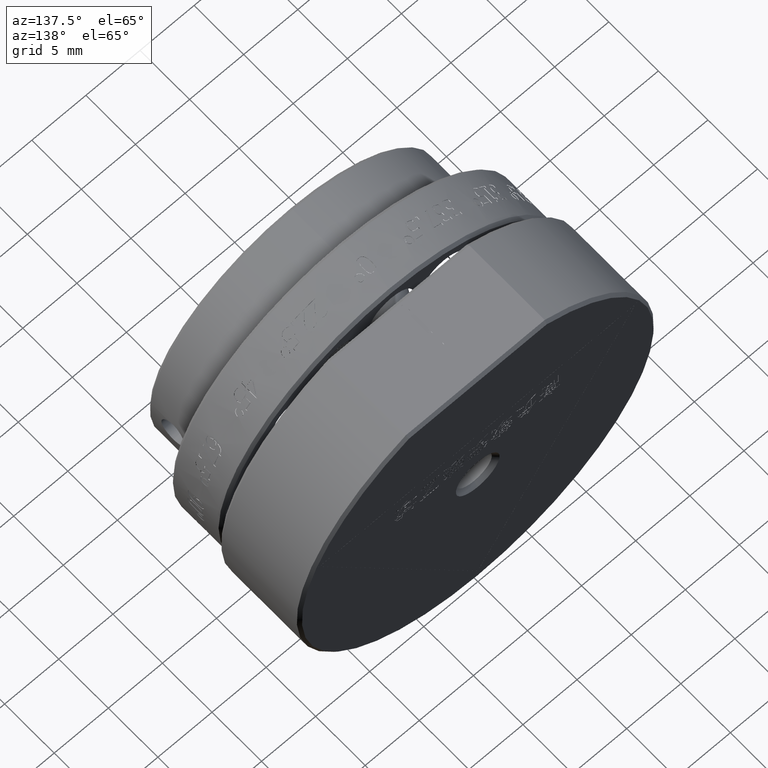
[diagram: clean part render]
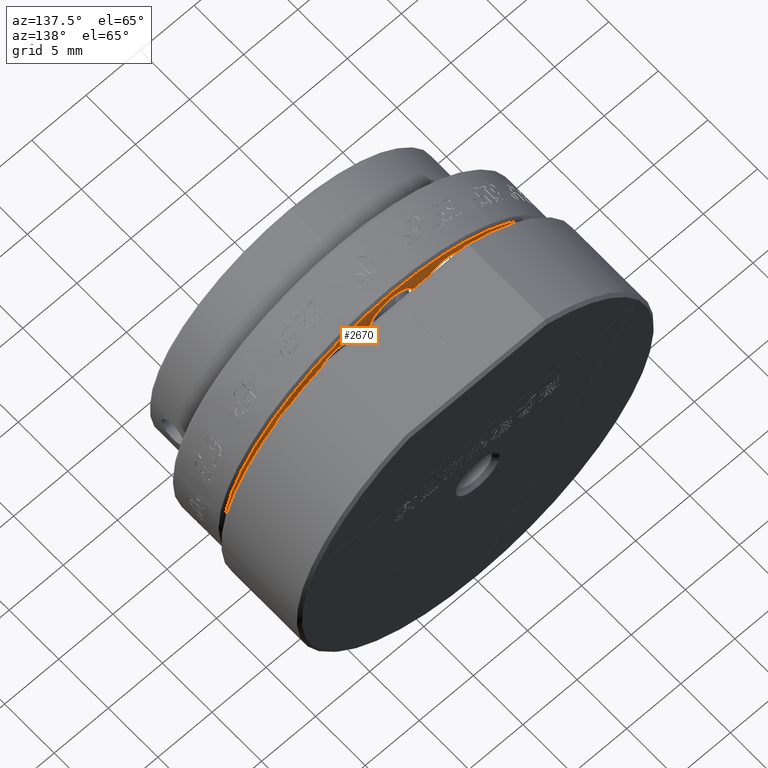
[diagram: same view with one face highlighted and labeled with its STEP entity id]
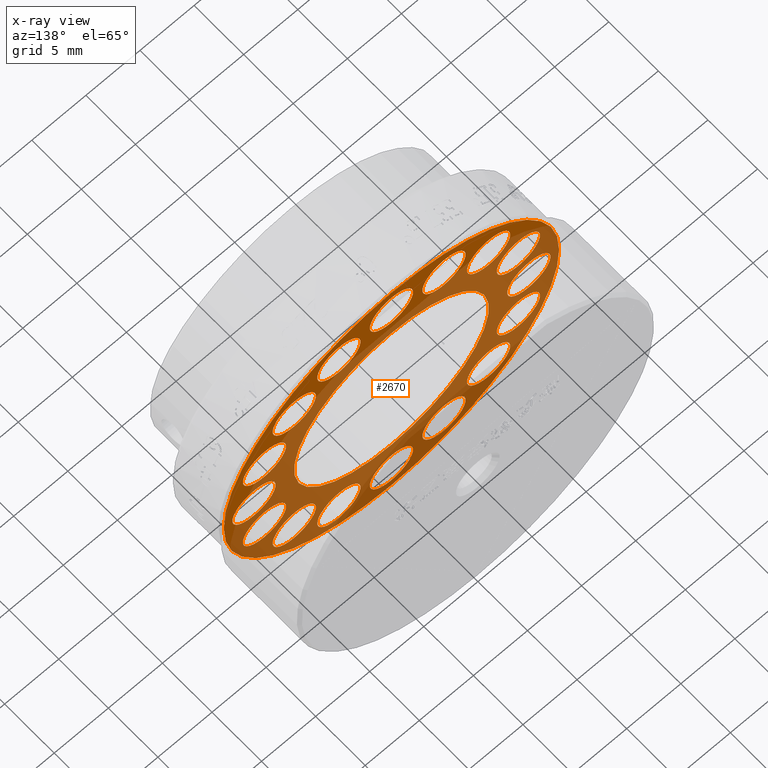
[diagram: x-ray of the same camera — body ghosted, the highlighted face saturated]
A machine part, auxiliary view. The second image highlights one B-rep face of the part: STEP entity #2670.
The next image is the same camera in x-ray: the body ghosted, the highlighted face saturated — about 75% of this face is hidden behind the body in this view.
In plain terms, the highlighted planar face has unit normal (0, 1, 0).
Its self-contained STEP definition (entity closure, byte-faithful):
#322 = AXIS2_PLACEMENT_3D ( 'NONE', #48827, #25949, #60209 ) ;
#379 = CIRCLE ( 'NONE', #41635, 2.000000000000000888 ) ;
#402 = AXIS2_PLACEMENT_3D ( 'NONE', #45160, #4934, #28158 ) ;
#515 = CARTESIAN_POINT ( 'NONE',  ( 4.860079591036610580, -8.724735272551624732, -9.733270062893511820 ) ) ;
#950 = DIRECTION ( 'NONE',  ( 0.000000000000000000, 1.000000000000000000, 0.000000000000000000 ) ) ;
#1179 = CARTESIAN_POINT ( 'NONE',  ( 1.040834085586084257E-13, -8.724735272551624732, 12.70000000000014495 ) ) ;
#1206 = CARTESIAN_POINT ( 'NONE',  ( -11.73327006289348517, -8.724735272551624732, 4.860079591036674529 ) ) ;
#1452 = EDGE_CURVE ( 'NONE', #19764, #63445, #32445, .T. ) ;
#1512 = FACE_BOUND ( 'NONE', #70168, .T. ) ;
#1573 = DIRECTION ( 'NONE',  ( 0.000000000000000000, 0.000000000000000000, 1.000000000000000000 ) ) ;
#1877 = DIRECTION ( 'NONE',  ( 0.000000000000000000, 0.000000000000000000, -1.000000000000000000 ) ) ;
#1925 = CIRCLE ( 'NONE', #13736, 2.000000000000000888 ) ;
#2346 = VERTEX_POINT ( 'NONE', #23387 ) ;
#2568 = DIRECTION ( 'NONE',  ( 0.000000000000000000, 0.000000000000000000, 1.000000000000000000 ) ) ;
#2593 = DIRECTION ( 'NONE',  ( 0.000000000000000000, 0.000000000000000000, 1.000000000000000000 ) ) ;
#2621 = ORIENTED_EDGE ( 'NONE', *, *, #19425, .F. ) ;
#2670 = ADVANCED_FACE ( 'NONE', ( #52749, #18505, #63073, #29560, #7408, #30637, #8126, #29927, #1512, #47617, #41024, #63444, #24721, #24010, #58274, #36206, #58634, #23656 ), #47267, .T. ) ;
#2758 = CIRCLE ( 'NONE', #402, 2.000000000000000888 ) ;
#2764 = DIRECTION ( 'NONE',  ( 0.000000000000000000, 0.000000000000000000, 1.000000000000000000 ) ) ;
#2913 = CARTESIAN_POINT ( 'NONE',  ( -1.029809815100159809E-13, -8.724735272551626508, -9.002000000000144553 ) ) ;
#3125 = CARTESIAN_POINT ( 'NONE',  ( 11.73327006289349583, -8.724735272551624732, 6.860079591036652324 ) ) ;
#3344 = VERTEX_POINT ( 'NONE', #48003 ) ;
#3579 = CARTESIAN_POINT ( 'NONE',  ( -11.73327006289346386, -8.724735272551624732, -6.860079591036727820 ) ) ;
#3778 = EDGE_CURVE ( 'NONE', #41564, #70552, #21922, .T. ) ;
#3896 = DIRECTION ( 'NONE',  ( 0.000000000000000000, 1.000000000000000000, 0.000000000000000000 ) ) ;
#4061 = ORIENTED_EDGE ( 'NONE', *, *, #12725, .F. ) ;
#4303 = DIRECTION ( 'NONE',  ( 0.000000000000000000, 1.000000000000000000, 0.000000000000000000 ) ) ;
#4326 = CIRCLE ( 'NONE', #45587, 2.000000000000000888 ) ;
#4633 = ORIENTED_EDGE ( 'NONE', *, *, #12194, .F. ) ;
#4873 = ORIENTED_EDGE ( 'NONE', *, *, #24792, .F. ) ;
#4897 = DIRECTION ( 'NONE',  ( 0.000000000000000000, 1.000000000000000000, 0.000000000000000000 ) ) ;
#4904 = AXIS2_PLACEMENT_3D ( 'NONE', #18249, #47017, #13077 ) ;
#4934 = DIRECTION ( 'NONE',  ( 0.000000000000000000, 1.000000000000000000, 0.000000000000000000 ) ) ;
#5299 = DIRECTION ( 'NONE',  ( 0.000000000000000000, 0.000000000000000000, 1.000000000000000000 ) ) ;
#5324 = CIRCLE ( 'NONE', #14758, 15.49799999999997802 ) ;
#5404 = DIRECTION ( 'NONE',  ( 0.000000000000000000, 0.000000000000000000, 1.000000000000000000 ) ) ;
#6006 = EDGE_LOOP ( 'NONE', ( #21446, #72928 ) ) ;
#6060 = CIRCLE ( 'NONE', #47307, 2.000000000000000000 ) ;
#6170 = DIRECTION ( 'NONE',  ( 0.000000000000000000, 0.000000000000000000, 1.000000000000000000 ) ) ;
#6521 = CARTESIAN_POINT ( 'NONE',  ( 1.043283379184378960E-13, -8.724735272551624732, 10.70000000000014317 ) ) ;
#6739 = DIRECTION ( 'NONE',  ( 0.000000000000000000, 0.000000000000000000, 1.000000000000000000 ) ) ;
#6872 = ORIENTED_EDGE ( 'NONE', *, *, #57705, .F. ) ;
#6973 = VERTEX_POINT ( 'NONE', #28615 ) ;
#7027 = EDGE_CURVE ( 'NONE', #70434, #23197, #4326, .T. ) ;
#7083 = ORIENTED_EDGE ( 'NONE', *, *, #13526, .T. ) ;
#7104 = CARTESIAN_POINT ( 'NONE',  ( 8.980256121069281505, -8.724735272551624732, 8.980256121069229991 ) ) ;
#7162 = VERTEX_POINT ( 'NONE', #13121 ) ;
#7289 = EDGE_CURVE ( 'NONE', #71923, #46027, #58511, .T. ) ;
#7408 = FACE_BOUND ( 'NONE', #19521, .T. ) ;
#7573 = VERTEX_POINT ( 'NONE', #57441 ) ;
#7711 = EDGE_LOOP ( 'NONE', ( #65721, #30752 ) ) ;
#7806 = CIRCLE ( 'NONE', #61952, 2.000000000000000888 ) ;
#8126 = FACE_BOUND ( 'NONE', #50865, .T. ) ;
#8152 = VERTEX_POINT ( 'NONE', #3125 ) ;
#8603 = EDGE_CURVE ( 'NONE', #70552, #41564, #31350, .T. ) ;
#8665 = CARTESIAN_POINT ( 'NONE',  ( -4.860079591036691404, -8.724735272551624732, 9.733270062893478070 ) ) ;
#8695 = CARTESIAN_POINT ( 'NONE',  ( -4.860079591036691404, -8.724735272551624732, 11.73327006289347807 ) ) ;
#8821 = DIRECTION ( 'NONE',  ( 0.000000000000000000, 0.000000000000000000, 1.000000000000000000 ) ) ;
#9024 = CIRCLE ( 'NONE', #10193, 2.000000000000000000 ) ;
#9143 = VERTEX_POINT ( 'NONE', #56210 ) ;
#9273 = VERTEX_POINT ( 'NONE', #62089 ) ;
#9455 = DIRECTION ( 'NONE',  ( 0.000000000000000000, 0.000000000000000000, 1.000000000000000000 ) ) ;
#9478 = EDGE_LOOP ( 'NONE', ( #62377, #31424 ) ) ;
#9526 = VERTEX_POINT ( 'NONE', #63451 ) ;
#9565 = CARTESIAN_POINT ( 'NONE',  ( 4.860079591036719826, -8.724735272551624732, 11.73327006289346564 ) ) ;
#9740 = CIRCLE ( 'NONE', #43906, 2.000000000000001776 ) ;
#9792 = DIRECTION ( 'NONE',  ( 0.000000000000000000, 0.000000000000000000, 1.000000000000000000 ) ) ;
#9818 = CIRCLE ( 'NONE', #10992, 2.000000000000001776 ) ;
#9963 = DIRECTION ( 'NONE',  ( 0.000000000000000000, 1.000000000000000000, 0.000000000000000000 ) ) ;
#10193 = AXIS2_PLACEMENT_3D ( 'NONE', #8695, #59566, #14998 ) ;
#10527 = AXIS2_PLACEMENT_3D ( 'NONE', #51525, #34965, #18342 ) ;
#10532 = DIRECTION ( 'NONE',  ( 0.000000000000000000, 1.000000000000000000, 0.000000000000000000 ) ) ;
#10643 = DIRECTION ( 'NONE',  ( 0.000000000000000000, 0.000000000000000000, 1.000000000000000000 ) ) ;
#10873 = EDGE_CURVE ( 'NONE', #9143, #25888, #42148, .T. ) ;
#10887 = VERTEX_POINT ( 'NONE', #24941 ) ;
#10992 = AXIS2_PLACEMENT_3D ( 'NONE', #7104, #40716, #1573 ) ;
#11099 = EDGE_CURVE ( 'NONE', #35232, #7162, #15073, .T. ) ;
#11280 = AXIS2_PLACEMENT_3D ( 'NONE', #16408, #61332, #60605 ) ;
#11609 = ORIENTED_EDGE ( 'NONE', *, *, #25345, .F. ) ;
#11833 = CIRCLE ( 'NONE', #68340, 2.000000000000000888 ) ;
#11921 = CIRCLE ( 'NONE', #53096, 2.000000000000000888 ) ;
#12194 = EDGE_CURVE ( 'NONE', #43286, #32194, #23318, .T. ) ;
#12257 = DIRECTION ( 'NONE',  ( 0.000000000000000000, 0.000000000000000000, 1.000000000000000000 ) ) ;
#12448 = VERTEX_POINT ( 'NONE', #44821 ) ;
#12451 = CARTESIAN_POINT ( 'NONE',  ( -1.040834085586084257E-13, -8.724735272551624732, -12.70000000000014495 ) ) ;
#12527 = VERTEX_POINT ( 'NONE', #20852 ) ;
#12577 = EDGE_LOOP ( 'NONE', ( #38777, #55763 ) ) ;
#12606 = EDGE_LOOP ( 'NONE', ( #15777, #37416 ) ) ;
#12680 = DIRECTION ( 'NONE',  ( 0.000000000000000000, 0.000000000000000000, 1.000000000000000000 ) ) ;
#12725 = EDGE_CURVE ( 'NONE', #7573, #55025, #17481, .T. ) ;
#12965 = DIRECTION ( 'NONE',  ( 0.000000000000000000, 1.000000000000000000, 0.000000000000000000 ) ) ;
#13077 = DIRECTION ( 'NONE',  ( 0.000000000000000000, 0.000000000000000000, 1.000000000000000000 ) ) ;
#13121 = CARTESIAN_POINT ( 'NONE',  ( -4.860079591036633673, -8.724735272551624732, -9.733270062893501162 ) ) ;
#13526 = EDGE_CURVE ( 'NONE', #71989, #2346, #26565, .T. ) ;
#13647 = DIRECTION ( 'NONE',  ( 0.000000000000000000, 0.000000000000000000, 1.000000000000000000 ) ) ;
#13736 = AXIS2_PLACEMENT_3D ( 'NONE', #17570, #950, #23443 ) ;
#14007 = CARTESIAN_POINT ( 'NONE',  ( 8.980256121069198016, -8.724735272551624732, -8.980256121069315256 ) ) ;
#14487 = ORIENTED_EDGE ( 'NONE', *, *, #59744, .F. ) ;
#14640 = CARTESIAN_POINT ( 'NONE',  ( -1.040834085586084257E-13, -8.724735272551624732, -15.49800000000012368 ) ) ;
#14758 = AXIS2_PLACEMENT_3D ( 'NONE', #50799, #56662, #6170 ) ;
#14819 = AXIS2_PLACEMENT_3D ( 'NONE', #51032, #67970, #27812 ) ;
#14998 = DIRECTION ( 'NONE',  ( 0.000000000000000000, 0.000000000000000000, 1.000000000000000000 ) ) ;
#15073 = CIRCLE ( 'NONE', #62126, 2.000000000000000000 ) ;
#15322 = DIRECTION ( 'NONE',  ( -0.000000000000000000, -1.000000000000000000, -0.000000000000000000 ) ) ;
#15777 = ORIENTED_EDGE ( 'NONE', *, *, #3778, .F. ) ;
#15780 = CARTESIAN_POINT ( 'NONE',  ( -8.980256121069261965, -8.724735272551624732, 10.98025612106925308 ) ) ;
#15812 = EDGE_CURVE ( 'NONE', #8152, #9526, #1925, .T. ) ;
#15878 = CARTESIAN_POINT ( 'NONE',  ( 4.860079591036719826, -8.724735272551624732, 11.73327006289346564 ) ) ;
#15930 = EDGE_CURVE ( 'NONE', #9273, #62157, #30216, .T. ) ;
#16395 = CARTESIAN_POINT ( 'NONE',  ( 12.70000000000014495, -8.724735272551624732, -5.974159555530013349E-14 ) ) ;
#16408 = CARTESIAN_POINT ( 'NONE',  ( 4.860079591036610580, -8.724735272551624732, -11.73327006289351360 ) ) ;
#17268 = DIRECTION ( 'NONE',  ( 0.000000000000000000, 1.000000000000000000, 0.000000000000000000 ) ) ;
#17481 = CIRCLE ( 'NONE', #58654, 2.000000000000001776 ) ;
#17570 = CARTESIAN_POINT ( 'NONE',  ( 11.73327006289349583, -8.724735272551624732, 4.860079591036651436 ) ) ;
#18174 = CARTESIAN_POINT ( 'NONE',  ( 11.73327006289344787, -8.724735272551624732, -4.860079591036760682 ) ) ;
#18188 = CARTESIAN_POINT ( 'NONE',  ( 8.980256121069198016, -8.724735272551624732, -6.980256121069314368 ) ) ;
#18249 = CARTESIAN_POINT ( 'NONE',  ( -1.040834085586084257E-13, -8.724735272551624732, -1.457167719820517959E-13 ) ) ;
#18342 = DIRECTION ( 'NONE',  ( 0.000000000000000000, 0.000000000000000000, 1.000000000000000000 ) ) ;
#18505 = FACE_BOUND ( 'NONE', #68114, .T. ) ;
#18650 = VERTEX_POINT ( 'NONE', #58268 ) ;
#18945 = EDGE_LOOP ( 'NONE', ( #57211, #36509 ) ) ;
#19425 = EDGE_CURVE ( 'NONE', #55025, #7573, #28109, .T. ) ;
#19521 = EDGE_LOOP ( 'NONE', ( #21688, #57807 ) ) ;
#19764 = VERTEX_POINT ( 'NONE', #6521 ) ;
#19789 = CARTESIAN_POINT ( 'NONE',  ( 8.980256121069281505, -8.724735272551624732, 8.980256121069229991 ) ) ;
#19941 = EDGE_CURVE ( 'NONE', #23197, #70434, #55242, .T. ) ;
#20300 = EDGE_CURVE ( 'NONE', #9526, #8152, #39983, .T. ) ;
#20361 = CIRCLE ( 'NONE', #322, 2.000000000000000888 ) ;
#20642 = CIRCLE ( 'NONE', #61795, 2.000000000000000888 ) ;
#20674 = CARTESIAN_POINT ( 'NONE',  ( 4.860079591036610580, -8.724735272551624732, -11.73327006289351360 ) ) ;
#20686 = CARTESIAN_POINT ( 'NONE',  ( -4.860079591036691404, -8.724735272551624732, 13.73327006289347807 ) ) ;
#20852 = CARTESIAN_POINT ( 'NONE',  ( 11.73327006289344787, -8.724735272551624732, -2.860079591036760238 ) ) ;
#21420 = DIRECTION ( 'NONE',  ( 0.000000000000000000, 0.000000000000000000, 1.000000000000000000 ) ) ;
#21446 = ORIENTED_EDGE ( 'NONE', *, *, #51513, .F. ) ;
#21688 = ORIENTED_EDGE ( 'NONE', *, *, #67592, .F. ) ;
#21922 = CIRCLE ( 'NONE', #11280, 2.000000000000001776 ) ;
#22588 = CARTESIAN_POINT ( 'NONE',  ( -4.860079591036633673, -8.724735272551624732, -11.73327006289350116 ) ) ;
#23197 = VERTEX_POINT ( 'NONE', #68890 ) ;
#23318 = CIRCLE ( 'NONE', #64489, 2.000000000000000888 ) ;
#23387 = CARTESIAN_POINT ( 'NONE',  ( -1.040834085586084257E-13, -8.724735272551626508, 9.001999999999853230 ) ) ;
#23443 = DIRECTION ( 'NONE',  ( 0.000000000000000000, 0.000000000000000000, 1.000000000000000000 ) ) ;
#23656 = FACE_BOUND ( 'NONE', #50410, .T. ) ;
#24010 = FACE_BOUND ( 'NONE', #58717, .T. ) ;
#24166 = CARTESIAN_POINT ( 'NONE',  ( -8.980256121069219333, -8.724735272551624732, -8.980256121069292163 ) ) ;
#24721 = FACE_BOUND ( 'NONE', #25927, .T. ) ;
#24762 = AXIS2_PLACEMENT_3D ( 'NONE', #14007, #65213, #13647 ) ;
#24792 = EDGE_CURVE ( 'NONE', #3344, #12448, #11833, .T. ) ;
#24941 = CARTESIAN_POINT ( 'NONE',  ( 8.980256121069281505, -8.724735272551624732, 10.98025612106923177 ) ) ;
#25062 = DIRECTION ( 'NONE',  ( 0.000000000000000000, 1.000000000000000000, 0.000000000000000000 ) ) ;
#25088 = DIRECTION ( 'NONE',  ( 0.000000000000000000, 1.000000000000000000, 0.000000000000000000 ) ) ;
#25345 = EDGE_CURVE ( 'NONE', #59909, #26863, #34245, .T. ) ;
#25798 = DIRECTION ( 'NONE',  ( 0.000000000000000000, 1.000000000000000000, 0.000000000000000000 ) ) ;
#25888 = VERTEX_POINT ( 'NONE', #28985 ) ;
#25927 = EDGE_LOOP ( 'NONE', ( #4061, #2621 ) ) ;
#25949 = DIRECTION ( 'NONE',  ( 0.000000000000000000, 1.000000000000000000, 0.000000000000000000 ) ) ;
#26565 = CIRCLE ( 'NONE', #34885, 9.001999999999998892 ) ;
#26752 = AXIS2_PLACEMENT_3D ( 'NONE', #16395, #45164, #5299 ) ;
#26863 = VERTEX_POINT ( 'NONE', #35967 ) ;
#27067 = DIRECTION ( 'NONE',  ( 0.000000000000000000, 1.000000000000000000, 0.000000000000000000 ) ) ;
#27551 = ORIENTED_EDGE ( 'NONE', *, *, #52450, .F. ) ;
#27812 = DIRECTION ( 'NONE',  ( 0.000000000000000000, 0.000000000000000000, 1.000000000000000000 ) ) ;
#28109 = CIRCLE ( 'NONE', #71665, 2.000000000000001776 ) ;
#28158 = DIRECTION ( 'NONE',  ( 0.000000000000000000, 0.000000000000000000, 1.000000000000000000 ) ) ;
#28352 = EDGE_CURVE ( 'NONE', #6973, #12527, #11921, .T. ) ;
#28615 = CARTESIAN_POINT ( 'NONE',  ( 11.73327006289344787, -8.724735272551624732, -6.860079591036761570 ) ) ;
#28642 = CARTESIAN_POINT ( 'NONE',  ( -8.980256121069219333, -8.724735272551624732, -6.980256121069291275 ) ) ;
#28869 = DIRECTION ( 'NONE',  ( 0.000000000000000000, 1.000000000000000000, 0.000000000000000000 ) ) ;
#28985 = CARTESIAN_POINT ( 'NONE',  ( -1.038384791987789554E-13, -8.724735272551624732, -14.70000000000014673 ) ) ;
#29046 = DIRECTION ( 'NONE',  ( 0.000000000000000000, 0.000000000000000000, 1.000000000000000000 ) ) ;
#29235 = CARTESIAN_POINT ( 'NONE',  ( -1.040834085586084257E-13, -8.724735272551624732, -12.70000000000014495 ) ) ;
#29560 = FACE_BOUND ( 'NONE', #12606, .T. ) ;
#29768 = ORIENTED_EDGE ( 'NONE', *, *, #68354, .T. ) ;
#29927 = FACE_BOUND ( 'NONE', #38421, .T. ) ;
#30216 = CIRCLE ( 'NONE', #38525, 2.000000000000000888 ) ;
#30637 = FACE_BOUND ( 'NONE', #53047, .T. ) ;
#30752 = ORIENTED_EDGE ( 'NONE', *, *, #44272, .F. ) ;
#31350 = CIRCLE ( 'NONE', #70151, 2.000000000000001776 ) ;
#31424 = ORIENTED_EDGE ( 'NONE', *, *, #28352, .F. ) ;
#32194 = VERTEX_POINT ( 'NONE', #3579 ) ;
#32212 = ORIENTED_EDGE ( 'NONE', *, *, #52051, .F. ) ;
#32445 = CIRCLE ( 'NONE', #14819, 2.000000000000001776 ) ;
#33600 = ORIENTED_EDGE ( 'NONE', *, *, #46100, .F. ) ;
#34245 = CIRCLE ( 'NONE', #24762, 2.000000000000000888 ) ;
#34367 = ORIENTED_EDGE ( 'NONE', *, *, #68958, .F. ) ;
#34447 = DIRECTION ( 'NONE',  ( 0.000000000000000000, 1.000000000000000000, 0.000000000000000000 ) ) ;
#34608 = VERTEX_POINT ( 'NONE', #20686 ) ;
#34885 = AXIS2_PLACEMENT_3D ( 'NONE', #65425, #15322, #2764 ) ;
#34912 = AXIS2_PLACEMENT_3D ( 'NONE', #29235, #28869, #55779 ) ;
#34965 = DIRECTION ( 'NONE',  ( 0.000000000000000000, 1.000000000000000000, 0.000000000000000000 ) ) ;
#35085 = CARTESIAN_POINT ( 'NONE',  ( 12.70000000000014495, -8.724735272551624732, 1.999999999999941158 ) ) ;
#35232 = VERTEX_POINT ( 'NONE', #51783 ) ;
#35240 = EDGE_CURVE ( 'NONE', #62555, #18650, #48505, .T. ) ;
#35334 = EDGE_CURVE ( 'NONE', #37331, #34608, #6060, .T. ) ;
#35696 = CARTESIAN_POINT ( 'NONE',  ( -8.980256121069261965, -8.724735272551624732, 8.980256121069251307 ) ) ;
#35826 = CARTESIAN_POINT ( 'NONE',  ( 8.980256121069198016, -8.724735272551624732, -8.980256121069315256 ) ) ;
#35967 = CARTESIAN_POINT ( 'NONE',  ( 8.980256121069198016, -8.724735272551624732, -10.98025612106931526 ) ) ;
#36206 = FACE_BOUND ( 'NONE', #46569, .T. ) ;
#36509 = ORIENTED_EDGE ( 'NONE', *, *, #20300, .F. ) ;
#37331 = VERTEX_POINT ( 'NONE', #8665 ) ;
#37416 = ORIENTED_EDGE ( 'NONE', *, *, #8603, .F. ) ;
#38421 = EDGE_LOOP ( 'NONE', ( #47191, #32212 ) ) ;
#38525 = AXIS2_PLACEMENT_3D ( 'NONE', #71677, #27067, #42996 ) ;
#38777 = ORIENTED_EDGE ( 'NONE', *, *, #61039, .F. ) ;
#39512 = CARTESIAN_POINT ( 'NONE',  ( -12.70000000000014495, -8.724735272551624732, -2.000000000000029754 ) ) ;
#39983 = CIRCLE ( 'NONE', #52880, 2.000000000000000888 ) ;
#40030 = ORIENTED_EDGE ( 'NONE', *, *, #19941, .F. ) ;
#40223 = EDGE_CURVE ( 'NONE', #47718, #53127, #66328, .T. ) ;
#40696 = DIRECTION ( 'NONE',  ( 0.000000000000000000, 1.000000000000000000, 0.000000000000000000 ) ) ;
#40699 = EDGE_CURVE ( 'NONE', #46027, #71923, #2758, .T. ) ;
#40716 = DIRECTION ( 'NONE',  ( 0.000000000000000000, 1.000000000000000000, 0.000000000000000000 ) ) ;
#40742 = ORIENTED_EDGE ( 'NONE', *, *, #57816, .F. ) ;
#41024 = FACE_BOUND ( 'NONE', #6006, .T. ) ;
#41051 = DIRECTION ( 'NONE',  ( 0.000000000000000000, 1.000000000000000000, 0.000000000000000000 ) ) ;
#41564 = VERTEX_POINT ( 'NONE', #515 ) ;
#41635 = AXIS2_PLACEMENT_3D ( 'NONE', #1206, #34447, #6739 ) ;
#41962 = ORIENTED_EDGE ( 'NONE', *, *, #7289, .F. ) ;
#42038 = CARTESIAN_POINT ( 'NONE',  ( -4.860079591036691404, -8.724735272551624732, 11.73327006289347807 ) ) ;
#42072 = AXIS2_PLACEMENT_3D ( 'NONE', #45137, #72746, #67552 ) ;
#42117 = CARTESIAN_POINT ( 'NONE',  ( 11.73327006289344787, -8.724735272551624732, -4.860079591036760682 ) ) ;
#42148 = CIRCLE ( 'NONE', #51533, 2.000000000000001776 ) ;
#42996 = DIRECTION ( 'NONE',  ( 0.000000000000000000, 0.000000000000000000, 1.000000000000000000 ) ) ;
#43119 = AXIS2_PLACEMENT_3D ( 'NONE', #70059, #12965, #1877 ) ;
#43286 = VERTEX_POINT ( 'NONE', #49975 ) ;
#43906 = AXIS2_PLACEMENT_3D ( 'NONE', #19789, #3896, #9792 ) ;
#44272 = EDGE_CURVE ( 'NONE', #25888, #9143, #46706, .T. ) ;
#44617 = DIRECTION ( 'NONE',  ( 0.000000000000000000, 1.000000000000000000, 0.000000000000000000 ) ) ;
#44821 = CARTESIAN_POINT ( 'NONE',  ( -11.73327006289348517, -8.724735272551624732, 6.860079591036675417 ) ) ;
#45137 = CARTESIAN_POINT ( 'NONE',  ( -12.70000000000014495, -8.724735272551624732, -2.894203045131648241E-14 ) ) ;
#45160 = CARTESIAN_POINT ( 'NONE',  ( 12.70000000000014495, -8.724735272551624732, -5.974159555530013349E-14 ) ) ;
#45164 = DIRECTION ( 'NONE',  ( 0.000000000000000000, 1.000000000000000000, 0.000000000000000000 ) ) ;
#45374 = AXIS2_PLACEMENT_3D ( 'NONE', #22588, #4897, #49529 ) ;
#45587 = AXIS2_PLACEMENT_3D ( 'NONE', #24166, #58787, #70209 ) ;
#45996 = CARTESIAN_POINT ( 'NONE',  ( 4.860079591036610580, -8.724735272551624732, -13.73327006289351537 ) ) ;
#46027 = VERTEX_POINT ( 'NONE', #48776 ) ;
#46100 = EDGE_CURVE ( 'NONE', #26863, #59909, #20642, .T. ) ;
#46478 = CIRCLE ( 'NONE', #67635, 9.001999999999998892 ) ;
#46545 = ORIENTED_EDGE ( 'NONE', *, *, #64285, .T. ) ;
#46569 = EDGE_LOOP ( 'NONE', ( #41962, #50535 ) ) ;
#46706 = CIRCLE ( 'NONE', #34912, 2.000000000000001776 ) ;
#47017 = DIRECTION ( 'NONE',  ( 0.000000000000000000, 1.000000000000000000, 0.000000000000000000 ) ) ;
#47120 = DIRECTION ( 'NONE',  ( 0.000000000000000000, 0.000000000000000000, 1.000000000000000000 ) ) ;
#47191 = ORIENTED_EDGE ( 'NONE', *, *, #15930, .F. ) ;
#47228 = CARTESIAN_POINT ( 'NONE',  ( -11.73327006289348517, -8.724735272551624732, 4.860079591036674529 ) ) ;
#47267 = PLANE ( 'NONE',  #43119 ) ;
#47307 = AXIS2_PLACEMENT_3D ( 'NONE', #42038, #47920, #59286 ) ;
#47604 = DIRECTION ( 'NONE',  ( 0.000000000000000000, 1.000000000000000000, 0.000000000000000000 ) ) ;
#47617 = FACE_BOUND ( 'NONE', #50343, .T. ) ;
#47718 = VERTEX_POINT ( 'NONE', #15780 ) ;
#47729 = CIRCLE ( 'NONE', #45374, 2.000000000000000000 ) ;
#47920 = DIRECTION ( 'NONE',  ( 0.000000000000000000, 1.000000000000000000, 0.000000000000000000 ) ) ;
#47974 = DIRECTION ( 'NONE',  ( 0.000000000000000000, 0.000000000000000000, 1.000000000000000000 ) ) ;
#48003 = CARTESIAN_POINT ( 'NONE',  ( -11.73327006289348517, -8.724735272551624732, 2.860079591036673197 ) ) ;
#48346 = ORIENTED_EDGE ( 'NONE', *, *, #40223, .F. ) ;
#48505 = CIRCLE ( 'NONE', #4904, 15.49799999999997802 ) ;
#48776 = CARTESIAN_POINT ( 'NONE',  ( 12.70000000000014495, -8.724735272551624732, -2.000000000000060840 ) ) ;
#48827 = CARTESIAN_POINT ( 'NONE',  ( -11.73327006289346386, -8.724735272551624732, -4.860079591036726931 ) ) ;
#49529 = DIRECTION ( 'NONE',  ( 0.000000000000000000, 0.000000000000000000, 1.000000000000000000 ) ) ;
#49975 = CARTESIAN_POINT ( 'NONE',  ( -11.73327006289346386, -8.724735272551624732, -2.860079591036726043 ) ) ;
#49983 = DIRECTION ( 'NONE',  ( 0.000000000000000000, 0.000000000000000000, 1.000000000000000000 ) ) ;
#50343 = EDGE_LOOP ( 'NONE', ( #48346, #27551 ) ) ;
#50346 = ORIENTED_EDGE ( 'NONE', *, *, #35240, .T. ) ;
#50410 = EDGE_LOOP ( 'NONE', ( #11609, #33600 ) ) ;
#50535 = ORIENTED_EDGE ( 'NONE', *, *, #40699, .F. ) ;
#50726 = EDGE_LOOP ( 'NONE', ( #50346, #29768 ) ) ;
#50799 = CARTESIAN_POINT ( 'NONE',  ( -1.040834085586084257E-13, -8.724735272551624732, -1.457167719820517959E-13 ) ) ;
#50865 = EDGE_LOOP ( 'NONE', ( #4633, #40742 ) ) ;
#50887 = EDGE_CURVE ( 'NONE', #12527, #6973, #7806, .T. ) ;
#51032 = CARTESIAN_POINT ( 'NONE',  ( 1.040834085586084257E-13, -8.724735272551624732, 12.70000000000014495 ) ) ;
#51513 = EDGE_CURVE ( 'NONE', #34608, #37331, #9024, .T. ) ;
#51525 = CARTESIAN_POINT ( 'NONE',  ( -8.980256121069219333, -8.724735272551624732, -8.980256121069292163 ) ) ;
#51533 = AXIS2_PLACEMENT_3D ( 'NONE', #12451, #17268, #29046 ) ;
#51783 = CARTESIAN_POINT ( 'NONE',  ( -4.860079591036633673, -8.724735272551624732, -13.73327006289350116 ) ) ;
#52051 = EDGE_CURVE ( 'NONE', #62157, #9273, #62015, .T. ) ;
#52404 = CARTESIAN_POINT ( 'NONE',  ( 8.980256121069281505, -8.724735272551624732, 6.980256121069229103 ) ) ;
#52450 = EDGE_CURVE ( 'NONE', #53127, #47718, #58484, .T. ) ;
#52749 = FACE_OUTER_BOUND ( 'NONE', #50726, .T. ) ;
#52825 = DIRECTION ( 'NONE',  ( -0.000000000000000000, -1.000000000000000000, -0.000000000000000000 ) ) ;
#52880 = AXIS2_PLACEMENT_3D ( 'NONE', #72089, #10532, #49983 ) ;
#53047 = EDGE_LOOP ( 'NONE', ( #55309, #40030 ) ) ;
#53096 = AXIS2_PLACEMENT_3D ( 'NONE', #18174, #40696, #56853 ) ;
#53127 = VERTEX_POINT ( 'NONE', #60127 ) ;
#53340 = CARTESIAN_POINT ( 'NONE',  ( -8.980256121069261965, -8.724735272551624732, 8.980256121069251307 ) ) ;
#54815 = CARTESIAN_POINT ( 'NONE',  ( -11.73327006289346386, -8.724735272551624732, -4.860079591036726931 ) ) ;
#55025 = VERTEX_POINT ( 'NONE', #66331 ) ;
#55242 = CIRCLE ( 'NONE', #10527, 2.000000000000000888 ) ;
#55249 = CARTESIAN_POINT ( 'NONE',  ( -4.860079591036633673, -8.724735272551624732, -11.73327006289350116 ) ) ;
#55309 = ORIENTED_EDGE ( 'NONE', *, *, #7027, .F. ) ;
#55598 = VERTEX_POINT ( 'NONE', #52404 ) ;
#55763 = ORIENTED_EDGE ( 'NONE', *, *, #1452, .F. ) ;
#55779 = DIRECTION ( 'NONE',  ( 0.000000000000000000, 0.000000000000000000, 1.000000000000000000 ) ) ;
#56210 = CARTESIAN_POINT ( 'NONE',  ( -1.040834085586084257E-13, -8.724735272551624732, -10.70000000000014317 ) ) ;
#56662 = DIRECTION ( 'NONE',  ( 0.000000000000000000, 1.000000000000000000, 0.000000000000000000 ) ) ;
#56853 = DIRECTION ( 'NONE',  ( 0.000000000000000000, 0.000000000000000000, 1.000000000000000000 ) ) ;
#57211 = ORIENTED_EDGE ( 'NONE', *, *, #15812, .F. ) ;
#57257 = CARTESIAN_POINT ( 'NONE',  ( -1.040834085586084257E-13, -8.724735272551626508, -1.457167719820517959E-13 ) ) ;
#57441 = CARTESIAN_POINT ( 'NONE',  ( 4.860079591036719826, -8.724735272551624732, 13.73327006289346741 ) ) ;
#57705 = EDGE_CURVE ( 'NONE', #10887, #55598, #9740, .T. ) ;
#57807 = ORIENTED_EDGE ( 'NONE', *, *, #11099, .F. ) ;
#57816 = EDGE_CURVE ( 'NONE', #32194, #43286, #20361, .T. ) ;
#58123 = DIRECTION ( 'NONE',  ( 0.000000000000000000, 1.000000000000000000, 0.000000000000000000 ) ) ;
#58268 = CARTESIAN_POINT ( 'NONE',  ( -1.021701428643005142E-13, -8.724735272551624732, 15.49799999999983235 ) ) ;
#58274 = FACE_BOUND ( 'NONE', #18945, .T. ) ;
#58484 = CIRCLE ( 'NONE', #67915, 2.000000000000001776 ) ;
#58511 = CIRCLE ( 'NONE', #26752, 2.000000000000000888 ) ;
#58634 = FACE_BOUND ( 'NONE', #9478, .T. ) ;
#58654 = AXIS2_PLACEMENT_3D ( 'NONE', #9565, #25798, #71500 ) ;
#58717 = EDGE_LOOP ( 'NONE', ( #6872, #34367 ) ) ;
#58787 = DIRECTION ( 'NONE',  ( 0.000000000000000000, 1.000000000000000000, 0.000000000000000000 ) ) ;
#59254 = AXIS2_PLACEMENT_3D ( 'NONE', #1179, #41051, #12257 ) ;
#59286 = DIRECTION ( 'NONE',  ( 0.000000000000000000, 0.000000000000000000, 1.000000000000000000 ) ) ;
#59314 = DIRECTION ( 'NONE',  ( 0.000000000000000000, 1.000000000000000000, 0.000000000000000000 ) ) ;
#59566 = DIRECTION ( 'NONE',  ( 0.000000000000000000, 1.000000000000000000, 0.000000000000000000 ) ) ;
#59744 = EDGE_CURVE ( 'NONE', #12448, #3344, #379, .T. ) ;
#59909 = VERTEX_POINT ( 'NONE', #18188 ) ;
#60127 = CARTESIAN_POINT ( 'NONE',  ( -8.980256121069261965, -8.724735272551624732, 6.980256121069249531 ) ) ;
#60209 = DIRECTION ( 'NONE',  ( 0.000000000000000000, 0.000000000000000000, 1.000000000000000000 ) ) ;
#60605 = DIRECTION ( 'NONE',  ( 0.000000000000000000, 0.000000000000000000, 1.000000000000000000 ) ) ;
#61039 = EDGE_CURVE ( 'NONE', #63445, #19764, #69827, .T. ) ;
#61332 = DIRECTION ( 'NONE',  ( 0.000000000000000000, 1.000000000000000000, 0.000000000000000000 ) ) ;
#61795 = AXIS2_PLACEMENT_3D ( 'NONE', #35826, #25062, #2568 ) ;
#61952 = AXIS2_PLACEMENT_3D ( 'NONE', #42117, #25088, #2593 ) ;
#62015 = CIRCLE ( 'NONE', #42072, 2.000000000000000888 ) ;
#62089 = CARTESIAN_POINT ( 'NONE',  ( -12.70000000000014495, -8.724735272551624732, 1.999999999999971800 ) ) ;
#62126 = AXIS2_PLACEMENT_3D ( 'NONE', #55249, #44617, #10643 ) ;
#62157 = VERTEX_POINT ( 'NONE', #39512 ) ;
#62377 = ORIENTED_EDGE ( 'NONE', *, *, #50887, .F. ) ;
#62555 = VERTEX_POINT ( 'NONE', #14640 ) ;
#63073 = FACE_BOUND ( 'NONE', #7711, .T. ) ;
#63444 = FACE_BOUND ( 'NONE', #12577, .T. ) ;
#63445 = VERTEX_POINT ( 'NONE', #72485 ) ;
#63451 = CARTESIAN_POINT ( 'NONE',  ( 11.73327006289349583, -8.724735272551624732, 2.860079591036650992 ) ) ;
#64285 = EDGE_CURVE ( 'NONE', #2346, #71989, #46478, .T. ) ;
#64489 = AXIS2_PLACEMENT_3D ( 'NONE', #54815, #66960, #5404 ) ;
#65213 = DIRECTION ( 'NONE',  ( 0.000000000000000000, 1.000000000000000000, 0.000000000000000000 ) ) ;
#65425 = CARTESIAN_POINT ( 'NONE',  ( -1.040834085586084257E-13, -8.724735272551626508, -1.457167719820517959E-13 ) ) ;
#65721 = ORIENTED_EDGE ( 'NONE', *, *, #10873, .F. ) ;
#66328 = CIRCLE ( 'NONE', #71031, 2.000000000000001776 ) ;
#66331 = CARTESIAN_POINT ( 'NONE',  ( 4.860079591036719826, -8.724735272551624732, 9.733270062893463859 ) ) ;
#66960 = DIRECTION ( 'NONE',  ( 0.000000000000000000, 1.000000000000000000, 0.000000000000000000 ) ) ;
#67552 = DIRECTION ( 'NONE',  ( 0.000000000000000000, 0.000000000000000000, 1.000000000000000000 ) ) ;
#67592 = EDGE_CURVE ( 'NONE', #7162, #35232, #47729, .T. ) ;
#67635 = AXIS2_PLACEMENT_3D ( 'NONE', #57257, #52825, #12680 ) ;
#67915 = AXIS2_PLACEMENT_3D ( 'NONE', #35696, #58123, #47120 ) ;
#67970 = DIRECTION ( 'NONE',  ( 0.000000000000000000, 1.000000000000000000, 0.000000000000000000 ) ) ;
#68114 = EDGE_LOOP ( 'NONE', ( #46545, #7083 ) ) ;
#68340 = AXIS2_PLACEMENT_3D ( 'NONE', #47228, #59314, #8821 ) ;
#68354 = EDGE_CURVE ( 'NONE', #18650, #62555, #5324, .T. ) ;
#68890 = CARTESIAN_POINT ( 'NONE',  ( -8.980256121069219333, -8.724735272551624732, -10.98025612106929394 ) ) ;
#68958 = EDGE_CURVE ( 'NONE', #55598, #10887, #9818, .T. ) ;
#69827 = CIRCLE ( 'NONE', #59254, 2.000000000000001776 ) ;
#70059 = CARTESIAN_POINT ( 'NONE',  ( -9.017000000000106041, -8.724735272551624732, -1.457167719820517959E-13 ) ) ;
#70151 = AXIS2_PLACEMENT_3D ( 'NONE', #20674, #47604, #47974 ) ;
#70168 = EDGE_LOOP ( 'NONE', ( #14487, #4873 ) ) ;
#70209 = DIRECTION ( 'NONE',  ( 0.000000000000000000, 0.000000000000000000, 1.000000000000000000 ) ) ;
#70434 = VERTEX_POINT ( 'NONE', #28642 ) ;
#70552 = VERTEX_POINT ( 'NONE', #45996 ) ;
#71031 = AXIS2_PLACEMENT_3D ( 'NONE', #53340, #4303, #9455 ) ;
#71500 = DIRECTION ( 'NONE',  ( 0.000000000000000000, 0.000000000000000000, 1.000000000000000000 ) ) ;
#71665 = AXIS2_PLACEMENT_3D ( 'NONE', #15878, #9963, #21420 ) ;
#71677 = CARTESIAN_POINT ( 'NONE',  ( -12.70000000000014495, -8.724735272551624732, -2.894203045131648241E-14 ) ) ;
#71923 = VERTEX_POINT ( 'NONE', #35085 ) ;
#71989 = VERTEX_POINT ( 'NONE', #2913 ) ;
#72089 = CARTESIAN_POINT ( 'NONE',  ( 11.73327006289349583, -8.724735272551624732, 4.860079591036651436 ) ) ;
#72485 = CARTESIAN_POINT ( 'NONE',  ( 1.040834085586084257E-13, -8.724735272551624732, 14.70000000000014673 ) ) ;
#72746 = DIRECTION ( 'NONE',  ( 0.000000000000000000, 1.000000000000000000, 0.000000000000000000 ) ) ;
#72928 = ORIENTED_EDGE ( 'NONE', *, *, #35334, .F. ) ;